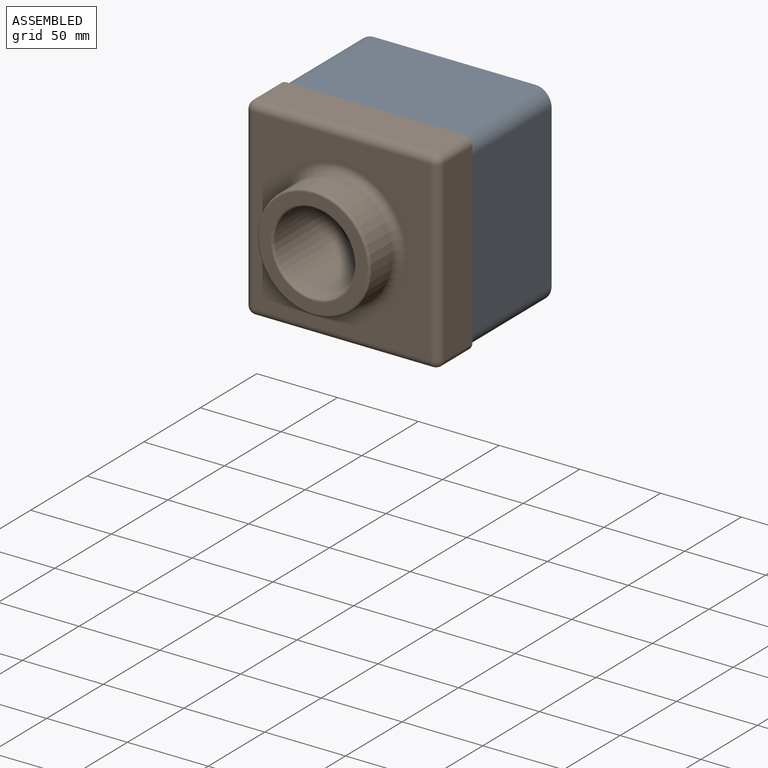
[diagram: assembled view]
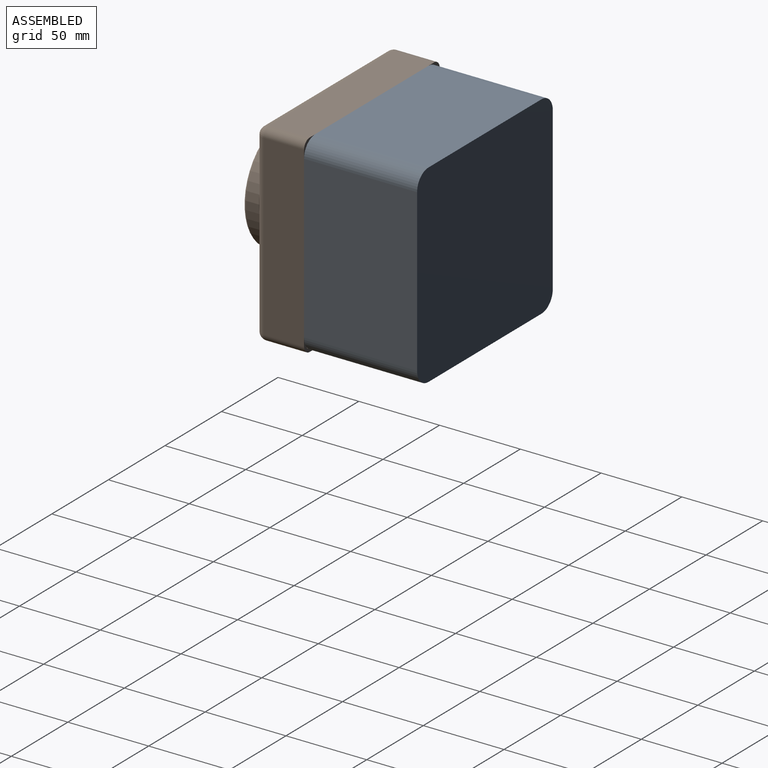
[diagram: assembled view, second angle]
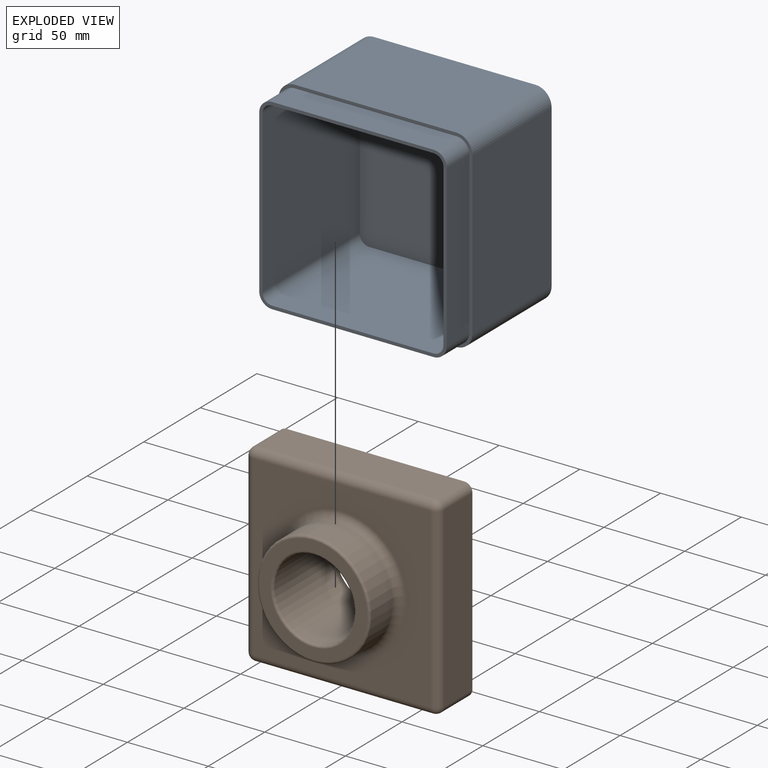
[diagram: exploded view]
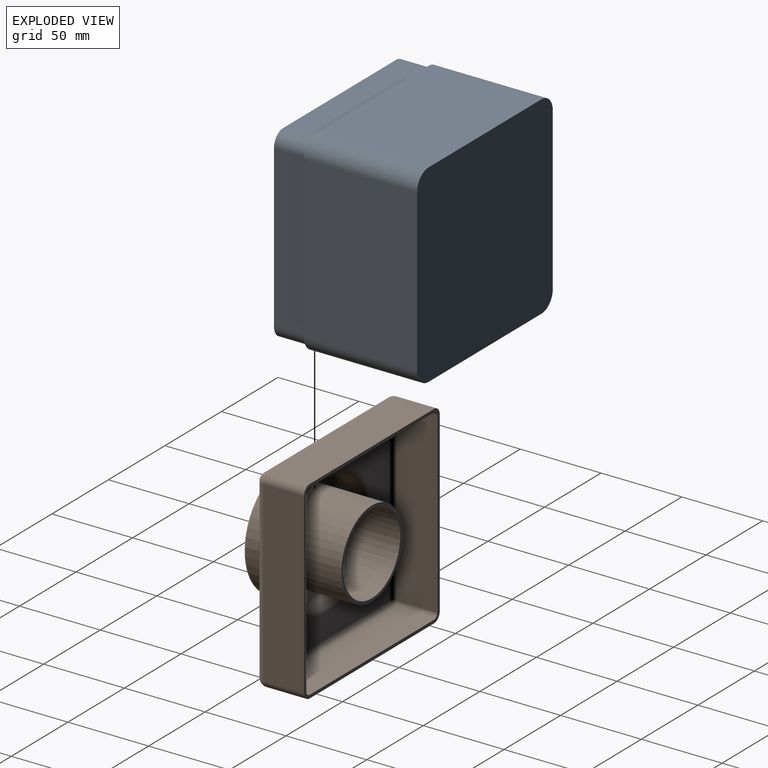
[diagram: exploded view, second angle]
ASSEMBLY  parts=2 mates=3
PART A: 28 faces, bbox 120x90x120 mm
  f0: plane 116x116mm, normal (0,-1,0), area 888mm2, adj f1,f2,f3,f4,f6,f7,f8,f9
  f1: plane 100x86mm, normal (-1,0,0), area 8600mm2, adj f0,f5,f6,f9
  f2: plane 100x86mm, normal (0,0,-1), area 8600mm2, adj f0,f5,f6,f7
  f3: plane 100x86mm, normal (1,0,0), area 8600mm2, adj f0,f5,f7,f8
  f4: plane 100x86mm, normal (0,0,1), area 8600mm2, adj f0,f5,f8,f9
  f5: plane 112x112mm, normal (0,-1,0), area 12513.1mm2, adj f1,f2,f3,f4,f6,f7,f8,f9
  f6: cylinder r=6mm len=86mm, axis (0,1,0), area 810.5mm2, adj f0,f1,f2,f5
  f7: cylinder r=6mm len=86mm, axis (0,-1,0), area 810.5mm2, adj f0,f2,f3,f5
  f8: cylinder r=6mm len=86mm, axis (0,1,0), area 810.5mm2, adj f0,f3,f4,f5
  f9: cylinder r=6mm len=86mm, axis (0,-1,0), area 810.5mm2, adj f0,f1,f4,f5
  f10: plane 100x20mm, normal (1,0,0), area 2000mm2, adj f0,f11,f17,f18
  f11: cylinder r=8mm len=20mm, axis (0,-1,0), area 251.3mm2, adj f0,f10,f12,f18
  f12: plane 100x20mm, normal (0,0,-1), area 2000mm2, adj f0,f11,f13,f18
  f13: cylinder r=8mm len=20mm, axis (0,-1,0), area 251.3mm2, adj f0,f12,f14,f18
  f14: plane 100x20mm, normal (-1,0,0), area 2000mm2, adj f0,f13,f15,f18
  f15: cylinder r=8mm len=20mm, axis (0,-1,0), area 251.3mm2, adj f0,f14,f16,f18
  f16: plane 100x20mm, normal (0,0,1), area 2000mm2, adj f0,f15,f17,f18
  f17: cylinder r=8mm len=20mm, axis (0,-1,0), area 251.3mm2, adj f0,f10,f16,f18
  f18: plane 120x120mm, normal (0,-1,0), area 913.1mm2, adj f10,f11,f12,f13,f14,f15,f16,f17
  f19: plane 120x120mm, normal (0,1,0), area 14314.2mm2, adj f20,f21,f22,f23,f24,f25,f26,f27
  f20: cylinder r=10mm len=70mm, axis (0,-1,0), area 1099.6mm2, adj f18,f19,f24,f26
  f21: cylinder r=10mm len=70mm, axis (0,1,0), area 1099.6mm2, adj f18,f19,f23,f24
  f22: cylinder r=10mm len=70mm, axis (0,-1,0), area 1099.6mm2, adj f18,f19,f23,f27
  f23: plane 100x70mm, normal (0,0,-1), area 7000mm2, adj f18,f19,f21,f22
  f24: plane 100x70mm, normal (-1,0,0), area 7000mm2, adj f18,f19,f20,f21
  f25: cylinder r=10mm len=70mm, axis (0,1,0), area 1099.6mm2, adj f18,f19,f26,f27
  f26: plane 100x70mm, normal (0,0,1), area 7000mm2, adj f18,f19,f20,f25
  f27: plane 100x70mm, normal (1,0,0), area 7000mm2, adj f18,f19,f22,f25
PART B: 46 faces, bbox 120x55x120 mm
  f0: plane 54x54mm, normal (0,1,0), area 326.7mm2, adj f9,f32
  f1: plane 110x25mm, normal (0,0,1), area 2750mm2, adj f6,f15,f21,f24
  f2: plane 110x25mm, normal (-1,0,0), area 2750mm2, adj f6,f18,f22,f24
  f3: plane 110x25mm, normal (0,0,-1), area 2750mm2, adj f6,f13,f17,f18
  f4: plane 110x25mm, normal (1,0,0), area 2750mm2, adj f6,f13,f15,f16
  f5: plane 110x110mm, normal (0,-1,0), area 7073.5mm2, adj f12,f16,f17,f21,f22
  f6: plane 120x120mm, normal (0,1,0), area 930.3mm2, adj f1,f2,f3,f4,f13,f15,f18,f24
  f7: cylinder r=35mm len=70mm, axis (0,1,0), area 4068.4mm2, adj f11,f12
  f8: plane 67x67mm, normal (0,-1,0), area 1319.5mm2, adj f10,f11
  f9: cylinder r=25mm len=53.5mm, axis (0,-1,0), area 8403.8mm2, adj f0,f10
  f10: torus R=26.5mm, axis (0,-1,0), area 378.2mm2, adj f8,f9
  f11: torus R=33.5mm, axis (0,-1,0), area 510.1mm2, adj f7,f8
  f12: torus R=40mm, axis (0,-1,0), area 1816.8mm2, adj f5,f7
  f13: cylinder r=5mm len=25mm, axis (0,1,0), area 196.3mm2, adj f3,f4,f6,f14
  f14: sphere r=5mm, area 39.3mm2, adj f13,f16,f17
  f15: cylinder r=5mm len=25mm, axis (0,-1,0), area 196.3mm2, adj f1,f4,f6,f19
  f16: cylinder r=5mm len=110mm, axis (0,0,-1), area 863.9mm2, adj f4,f5,f14,f19
  f17: cylinder r=5mm len=110mm, axis (-1,0,0), area 863.9mm2, adj f3,f5,f14,f20
  f18: cylinder r=5mm len=25mm, axis (0,-1,0), area 196.3mm2, adj f2,f3,f6,f20
  f19: sphere r=5mm, area 39.3mm2, adj f15,f16,f21
  f20: sphere r=5mm, area 39.3mm2, adj f17,f18,f22
  f21: cylinder r=5mm len=110mm, axis (1,0,0), area 863.9mm2, adj f1,f5,f19,f23
  f22: cylinder r=5mm len=110mm, axis (0,0,1), area 863.9mm2, adj f2,f5,f20,f23
  f23: sphere r=5mm, area 39.3mm2, adj f21,f22,f24
  f24: cylinder r=5mm len=25mm, axis (0,1,0), area 196.3mm2, adj f1,f2,f6,f23
  f25: plane 110x25mm, normal (0,0,-1), area 2750mm2, adj f6,f36,f42,f45
  f26: plane 110x25mm, normal (1,0,0), area 2750mm2, adj f6,f39,f43,f45
  f27: plane 110x25mm, normal (0,0,1), area 2750mm2, adj f6,f34,f38,f39
  f28: plane 110x25mm, normal (-1,0,0), area 2750mm2, adj f6,f34,f36,f37
  f29: plane 110x110mm, normal (0,1,0), area 7073.5mm2, adj f33,f37,f38,f42,f43
  f30: cylinder r=33mm len=66mm, axis (0,1,0), area 3732.2mm2, adj f31,f33
  f31: plane 66x66mm, normal (0,1,0), area 1131mm2, adj f30,f32
  f32: cylinder r=27mm len=54mm, axis (0,-1,0), area 8991.2mm2, adj f0,f31
  f33: torus R=40mm, axis (0,-1,0), area 2455.6mm2, adj f29,f30
  f34: cylinder r=3mm len=25mm, axis (0,1,0), area 117.8mm2, adj f6,f27,f28,f35
  f35: sphere r=3mm, area 14.1mm2, adj f34,f37,f38
  f36: cylinder r=3mm len=25mm, axis (0,-1,0), area 117.8mm2, adj f6,f25,f28,f40
  f37: cylinder r=3mm len=110mm, axis (0,0,-1), area 518.4mm2, adj f28,f29,f35,f40
  f38: cylinder r=3mm len=110mm, axis (-1,0,0), area 518.4mm2, adj f27,f29,f35,f41
  f39: cylinder r=3mm len=25mm, axis (0,-1,0), area 117.8mm2, adj f6,f26,f27,f41
  f40: sphere r=3mm, area 14.1mm2, adj f36,f37,f42
  f41: sphere r=3mm, area 14.1mm2, adj f38,f39,f43
  f42: cylinder r=3mm len=110mm, axis (1,0,0), area 518.4mm2, adj f25,f29,f40,f44
  f43: cylinder r=3mm len=110mm, axis (0,0,1), area 518.4mm2, adj f26,f29,f41,f44
  f44: sphere r=3mm, area 14.1mm2, adj f42,f43,f45
  f45: cylinder r=3mm len=25mm, axis (0,1,0), area 117.8mm2, adj f6,f25,f26,f44
PLACE A t=(-283.06,8.06,-259.76)mm fixed
PLACE B t=(-403.06,-61.94,-259.76)mm
MATE planar A.f16 <-> B.f25  axis (0,0,1) through (-343.06,-71.94,-141.76)mm
MATE planar B.f16 <-> A.f12  axis (0,0,1) through (-288.06,-86.94,-257.76)mm
MATE fastened A.f18 <-> B.f7  axis (0,-1,0) through (-343.06,-61.94,-199.76)mm
